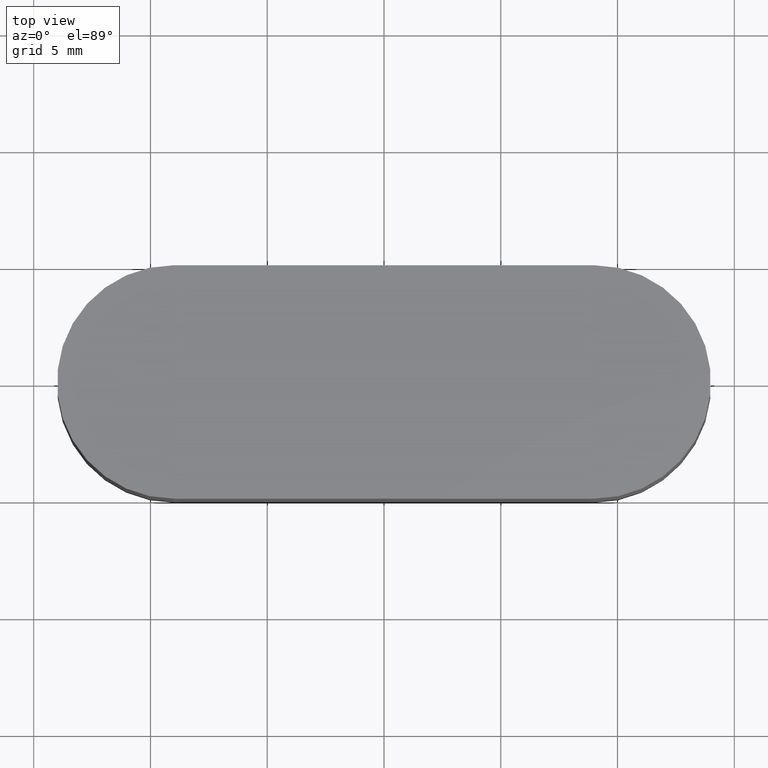
[diagram: clean part render]
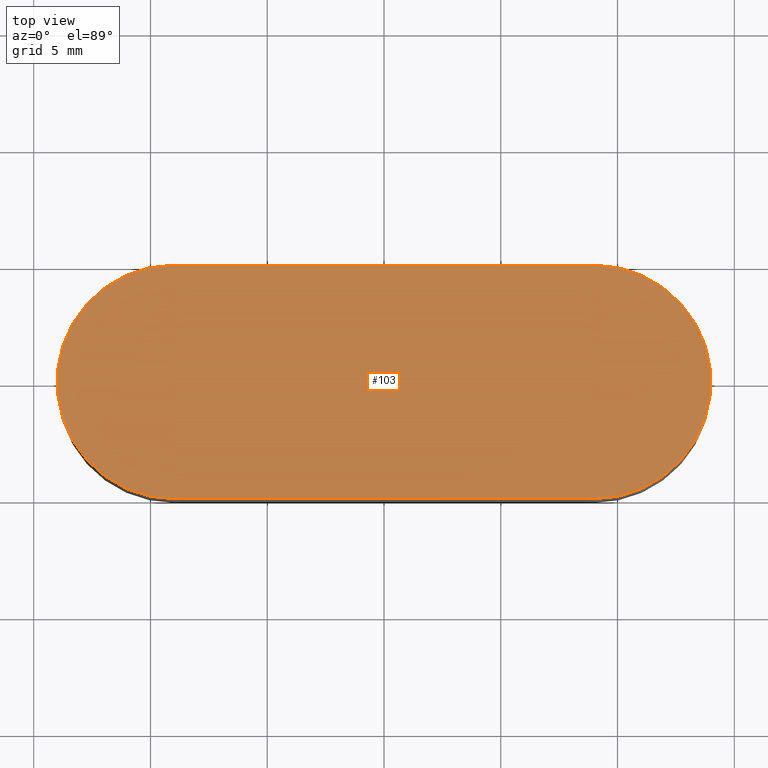
[diagram: same view with one face highlighted and labeled with its STEP entity id]
A machine part, top view. The second image highlights one B-rep face of the part: STEP entity #103.
In plain terms, the highlighted planar face has unit normal (0, 0, 1).
Its self-contained STEP definition (entity closure, byte-faithful):
#21=FACE_OUTER_BOUND('',#27,.T.);
#27=EDGE_LOOP('',(#88,#89,#90,#91));
#32=LINE('',#182,#40);
#35=LINE('',#189,#43);
#40=VECTOR('',#152,10.);
#43=VECTOR('',#161,10.);
#46=CIRCLE('',#128,5.);
#47=CIRCLE('',#131,5.);
#52=VERTEX_POINT('',#175);
#53=VERTEX_POINT('',#176);
#54=VERTEX_POINT('',#181);
#55=VERTEX_POINT('',#185);
#60=EDGE_CURVE('',#52,#53,#46,.T.);
#63=EDGE_CURVE('',#53,#54,#32,.T.);
#65=EDGE_CURVE('',#54,#55,#47,.T.);
#67=EDGE_CURVE('',#55,#52,#35,.T.);
#88=ORIENTED_EDGE('',*,*,#60,.F.);
#89=ORIENTED_EDGE('',*,*,#67,.F.);
#90=ORIENTED_EDGE('',*,*,#65,.F.);
#91=ORIENTED_EDGE('',*,*,#63,.F.);
#95=PLANE('',#133);
#103=ADVANCED_FACE('',(#21),#95,.T.);
#128=AXIS2_PLACEMENT_3D('',#177,#146,#147);
#131=AXIS2_PLACEMENT_3D('',#186,#156,#157);
#133=AXIS2_PLACEMENT_3D('',#190,#162,#163);
#146=DIRECTION('center_axis',(0.,0.,-1.));
#147=DIRECTION('ref_axis',(-4.44089209850063E-16,1.,0.));
#152=DIRECTION('',(1.,1.85037170770859E-16,0.));
#156=DIRECTION('center_axis',(0.,0.,-1.));
#157=DIRECTION('ref_axis',(0.,-1.,0.));
#161=DIRECTION('',(-1.,0.,0.));
#162=DIRECTION('center_axis',(0.,0.,1.));
#163=DIRECTION('ref_axis',(1.,0.,0.));
#175=CARTESIAN_POINT('',(-9.,-5.,5.));
#176=CARTESIAN_POINT('',(-9.00000000000001,5.,5.));
#177=CARTESIAN_POINT('Origin',(-9.,5.55111512312578E-16,5.));
#181=CARTESIAN_POINT('',(9.,5.,5.));
#182=CARTESIAN_POINT('',(9.,5.,5.));
#185=CARTESIAN_POINT('',(9.,-5.,5.));
#186=CARTESIAN_POINT('Origin',(9.,2.78214431377604E-15,5.));
#189=CARTESIAN_POINT('',(-9.,-5.,5.));
#190=CARTESIAN_POINT('Origin',(-1.11022302462516E-15,1.21604781766424E-15,
5.));